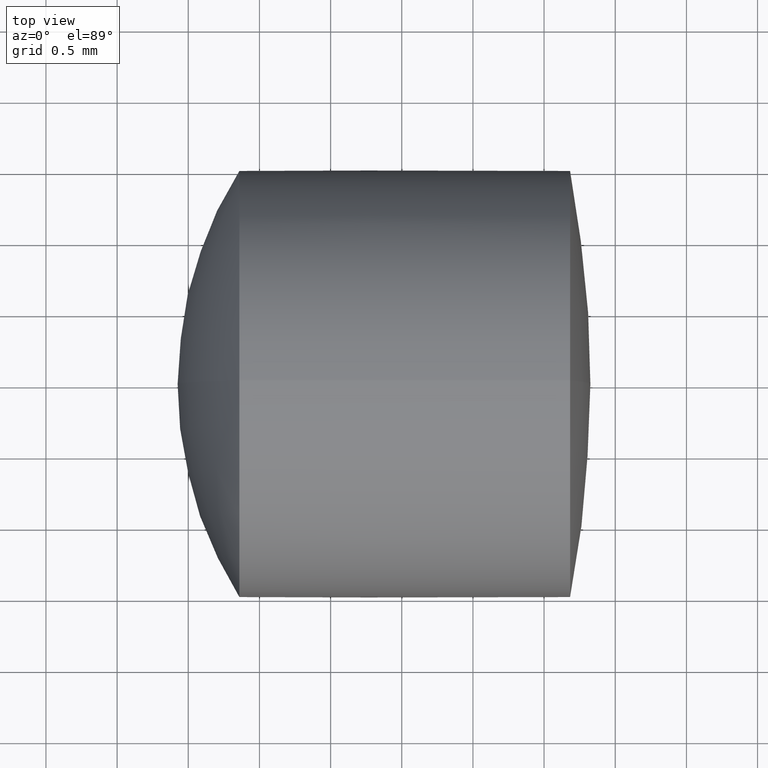
[diagram: clean part render]
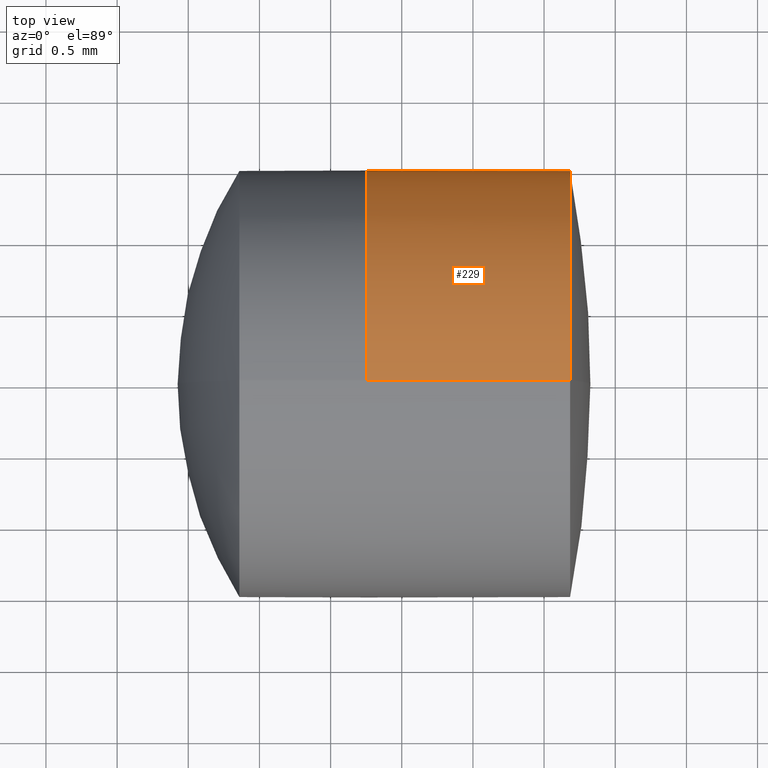
[diagram: same view with one face highlighted and labeled with its STEP entity id]
A machine part, top view. The second image highlights one B-rep face of the part: STEP entity #229.
In plain terms, the highlighted cylindrical surface (partial cylindrical patch) has radius 1.5 mm, axis along (-1, -0, -0).
Its self-contained STEP definition (entity closure, byte-faithful):
#6 = AXIS2_PLACEMENT_3D ( 'NONE', #169, #331, #142 ) ;
#12 = VERTEX_POINT ( 'NONE', #276 ) ;
#22 = CARTESIAN_POINT ( 'NONE',  ( 1.256612268473860800, 0.0000000000000000000, -1.500000000000000000 ) ) ;
#28 = VERTEX_POINT ( 'NONE', #146 ) ;
#29 = CARTESIAN_POINT ( 'NONE',  ( -0.5519199926577972300, 0.0000000000000000000, 1.500000000000000000 ) ) ;
#41 = CYLINDRICAL_SURFACE ( 'NONE', #120, 1.500000000000000000 ) ;
#42 = ORIENTED_EDGE ( 'NONE', *, *, #129, .F. ) ;
#44 = ORIENTED_EDGE ( 'NONE', *, *, #150, .T. ) ;
#52 = CARTESIAN_POINT ( 'NONE',  ( -0.5519199926577972300, 0.0000000000000000000, 0.0000000000000000000 ) ) ;
#54 = DIRECTION ( 'NONE',  ( 0.0000000000000000000, 0.0000000000000000000, 1.000000000000000000 ) ) ;
#74 = ORIENTED_EDGE ( 'NONE', *, *, #168, .T. ) ;
#75 = CARTESIAN_POINT ( 'NONE',  ( 2.682603304314750600, 0.0000000000000000000, 0.0000000000000000000 ) ) ;
#80 = VERTEX_POINT ( 'NONE', #303 ) ;
#109 = EDGE_CURVE ( 'NONE', #12, #249, #318, .T. ) ;
#110 = DIRECTION ( 'NONE',  ( -1.000000000000000000, -0.0000000000000000000, -0.0000000000000000000 ) ) ;
#120 = AXIS2_PLACEMENT_3D ( 'NONE', #52, #209, #263 ) ;
#121 = ORIENTED_EDGE ( 'NONE', *, *, #109, .F. ) ;
#129 = EDGE_CURVE ( 'NONE', #80, #12, #339, .T. ) ;
#142 = DIRECTION ( 'NONE',  ( 0.0000000000000000000, 0.0000000000000000000, 1.000000000000000000 ) ) ;
#146 = CARTESIAN_POINT ( 'NONE',  ( 2.682603304314751000, 0.0000000000000000000, -1.500000000000000000 ) ) ;
#150 = EDGE_CURVE ( 'NONE', #28, #249, #310, .T. ) ;
#168 = EDGE_CURVE ( 'NONE', #80, #28, #319, .T. ) ;
#169 = CARTESIAN_POINT ( 'NONE',  ( 1.256612268473860800, 0.0000000000000000000, 0.0000000000000000000 ) ) ;
#203 = FACE_OUTER_BOUND ( 'NONE', #253, .T. ) ;
#209 = DIRECTION ( 'NONE',  ( -1.000000000000000000, -0.0000000000000000000, -0.0000000000000000000 ) ) ;
#224 = VECTOR ( 'NONE', #110, 1000.000000000000000 ) ;
#229 = ADVANCED_FACE ( 'NONE', ( #203 ), #41, .T. ) ;
#233 = VECTOR ( 'NONE', #267, 1000.000000000000000 ) ;
#237 = DIRECTION ( 'NONE',  ( -1.000000000000000000, -0.0000000000000000000, -0.0000000000000000000 ) ) ;
#249 = VERTEX_POINT ( 'NONE', #22 ) ;
#250 = AXIS2_PLACEMENT_3D ( 'NONE', #75, #237, #54 ) ;
#253 = EDGE_LOOP ( 'NONE', ( #74, #44, #121, #42 ) ) ;
#263 = DIRECTION ( 'NONE',  ( 0.0000000000000000000, 0.0000000000000000000, 1.000000000000000000 ) ) ;
#267 = DIRECTION ( 'NONE',  ( -1.000000000000000000, -0.0000000000000000000, -0.0000000000000000000 ) ) ;
#276 = CARTESIAN_POINT ( 'NONE',  ( 1.256612268473860800, -1.836970198721030200E-016, 1.500000000000000000 ) ) ;
#303 = CARTESIAN_POINT ( 'NONE',  ( 2.682603304314751000, -1.836970198721029900E-016, 1.500000000000000000 ) ) ;
#310 = LINE ( 'NONE', #329, #233 ) ;
#318 = CIRCLE ( 'NONE', #6, 1.500000000000000000 ) ;
#319 = CIRCLE ( 'NONE', #250, 1.500000000000000000 ) ;
#329 = CARTESIAN_POINT ( 'NONE',  ( -0.5519199926577972300, 1.836970198721029900E-016, -1.500000000000000000 ) ) ;
#331 = DIRECTION ( 'NONE',  ( -1.000000000000000000, -0.0000000000000000000, -0.0000000000000000000 ) ) ;
#339 = LINE ( 'NONE', #29, #224 ) ;